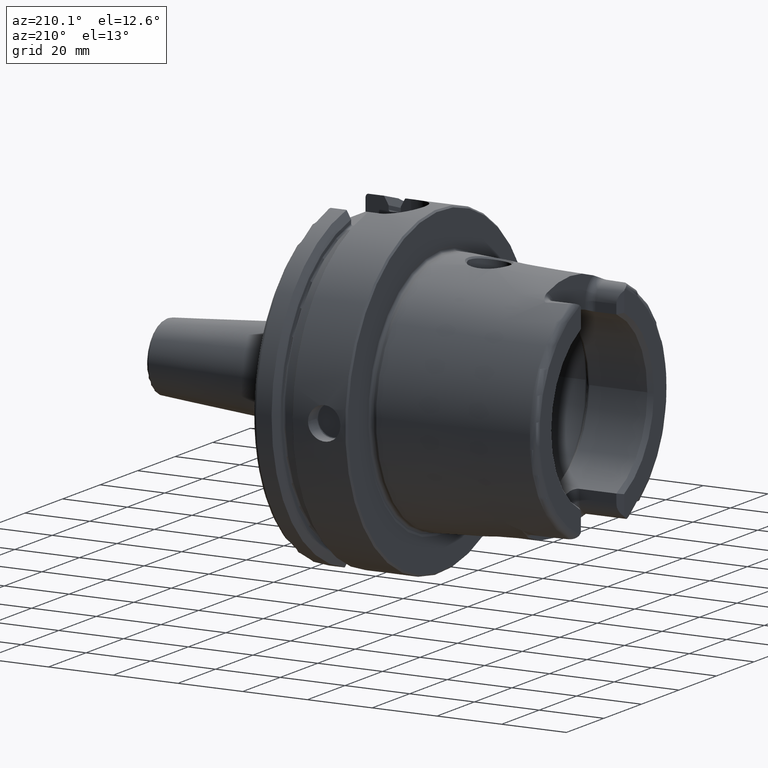
[diagram: clean part render]
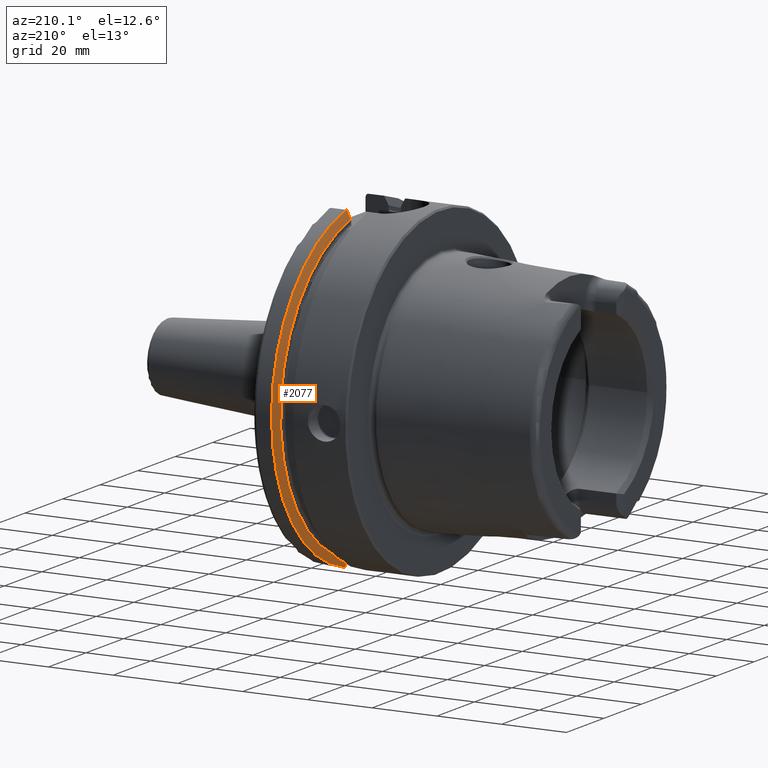
[diagram: same view with one face highlighted and labeled with its STEP entity id]
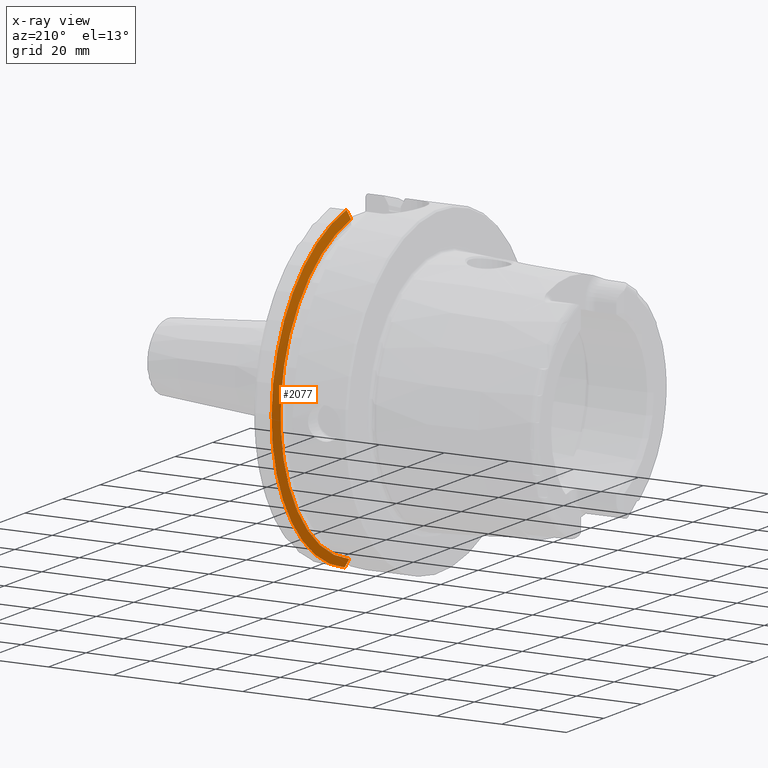
[diagram: x-ray of the same camera — body ghosted, the highlighted face saturated]
A machine part, auxiliary view. The second image highlights one B-rep face of the part: STEP entity #2077.
The next image is the same camera in x-ray: the body ghosted, the highlighted face saturated — about 0% of this face is hidden behind the body in this view.
In plain terms, the highlighted conical surface has half-angle 60 deg.
Its self-contained STEP definition (entity closure, byte-faithful):
#24=(
BOUNDED_CURVE()
B_SPLINE_CURVE(2,(#4254,#4255,#4256),.UNSPECIFIED.,.F.,.F.)
B_SPLINE_CURVE_WITH_KNOTS((3,3),(0.,0.28292349080556),.UNSPECIFIED.)
CURVE()
GEOMETRIC_REPRESENTATION_ITEM()
RATIONAL_B_SPLINE_CURVE((1.,1.0003193410929,1.))
REPRESENTATION_ITEM('')
);
#27=(
BOUNDED_CURVE()
B_SPLINE_CURVE(2,(#4345,#4346,#4347),.UNSPECIFIED.,.F.,.F.)
B_SPLINE_CURVE_WITH_KNOTS((3,3),(0.,0.281931851964124),.UNSPECIFIED.)
CURVE()
GEOMETRIC_REPRESENTATION_ITEM()
RATIONAL_B_SPLINE_CURVE((1.,1.00031639802473,1.))
REPRESENTATION_ITEM('')
);
#276=FACE_OUTER_BOUND('',#408,.T.);
#408=EDGE_LOOP('',(#1719,#1720,#1721,#1722));
#761=CIRCLE('',#2308,50.);
#763=CIRCLE('',#2312,47.5975952641917);
#974=VERTEX_POINT('',#4251);
#975=VERTEX_POINT('',#4253);
#988=VERTEX_POINT('',#4337);
#989=VERTEX_POINT('',#4343);
#1235=EDGE_CURVE('',#975,#974,#24,.T.);
#1256=EDGE_CURVE('',#975,#988,#761,.T.);
#1259=EDGE_CURVE('',#974,#989,#763,.T.);
#1260=EDGE_CURVE('',#989,#988,#27,.T.);
#1719=ORIENTED_EDGE('',*,*,#1235,.T.);
#1720=ORIENTED_EDGE('',*,*,#1259,.T.);
#1721=ORIENTED_EDGE('',*,*,#1260,.T.);
#1722=ORIENTED_EDGE('',*,*,#1256,.F.);
#2003=CONICAL_SURFACE('',#2311,48.7987976320958,1.0471975511966);
#2077=ADVANCED_FACE('',(#276),#2003,.T.);
#2308=AXIS2_PLACEMENT_3D('',#4338,#2806,#2807);
#2311=AXIS2_PLACEMENT_3D('',#4342,#2813,#2814);
#2312=AXIS2_PLACEMENT_3D('',#4344,#2815,#2816);
#2806=DIRECTION('center_axis',(1.,0.,0.));
#2807=DIRECTION('ref_axis',(0.,0.,-1.));
#2813=DIRECTION('center_axis',(1.,0.,0.));
#2814=DIRECTION('ref_axis',(0.,1.,0.));
#2815=DIRECTION('center_axis',(1.,0.,0.));
#2816=DIRECTION('ref_axis',(0.,0.,-1.));
#4251=CARTESIAN_POINT('',(21.875,11.,-46.3090819919138));
#4253=CARTESIAN_POINT('',(23.2620290209214,11.,-48.7749935930288));
#4254=CARTESIAN_POINT('Ctrl Pts',(23.2620290209214,11.,-48.7749935930288));
#4255=CARTESIAN_POINT('Ctrl Pts',(22.5505288964237,11.,-47.5116880808802));
#4256=CARTESIAN_POINT('Ctrl Pts',(21.875,11.,-46.3090819919138));
#4337=CARTESIAN_POINT('',(23.2620290209214,10.,48.9897948556636));
#4338=CARTESIAN_POINT('Origin',(23.2620290209214,0.,0.));
#4342=CARTESIAN_POINT('Origin',(22.5685145104607,0.,0.));
#4343=CARTESIAN_POINT('',(21.875,10.,46.5352670018535));
#4344=CARTESIAN_POINT('Origin',(21.875,0.,0.));
#4345=CARTESIAN_POINT('Ctrl Pts',(21.875,10.,46.5352670018535));
#4346=CARTESIAN_POINT('Ctrl Pts',(22.5506945724782,10.,47.7323213251992));
#4347=CARTESIAN_POINT('Ctrl Pts',(23.2620290209214,10.,48.9897948556636));